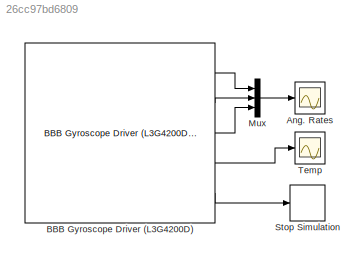
MODEL slx_26cc97bd6809
KIND model
BLOCK [Scope] Ang. Rates
  DataFormat = StructureWithTime
  Floating = off
  NumInputPorts = 1
  Ports = [1]
  SampleTime = 0
  ShowLegends = off
  TimeRange = 30
  YMax = 250
  YMin = -175
BLOCK [Reference] BBB Gyroscope Driver (L3G4200D)   REF=BLACKlink/BBB Gyroscope Driver (L3G4200D)

  BBB_DebugInfo = Debug Level 0 - Basic Info Only
  BBB_GyroRange = Range: 250 deg/sec
  BBB_I2CAddress = Gyro Address: 0x068
  BBB_I2CBus = BeagleBone Black I2C Channel 1
  Ports = [0, 5]
  SourceBlock = BLACKlink/BBB Gyroscope Driver (L3G4200D)
  SourceType = BLACKlink Album - BBB_Driver_Gyroscope_L3G4200D
BLOCK [Mux] Mux
  DisplayOption = bar
  Inputs = 3
  Ports = [3, 1]
BLOCK [Stop] Stop Simulation
BLOCK [Scope] Temp
  DataFormat = StructureWithTime
  Floating = off
  NumInputPorts = 1
  Ports = [1]
  SampleTime = 0
  SaveName = ScopeData1
  ShowLegends = off
  YMax = 16
  YMin = 16
LINE BBB Gyroscope Driver (L3G4200D) :1 -> Mux:1
LINE BBB Gyroscope Driver (L3G4200D) :2 -> Mux:2
LINE BBB Gyroscope Driver (L3G4200D) :3 -> Mux:3
LINE BBB Gyroscope Driver (L3G4200D) :4 -> Temp:1
LINE BBB Gyroscope Driver (L3G4200D) :5 -> Stop Simulation:1
LINE Mux:1 -> Ang. Rates:1
